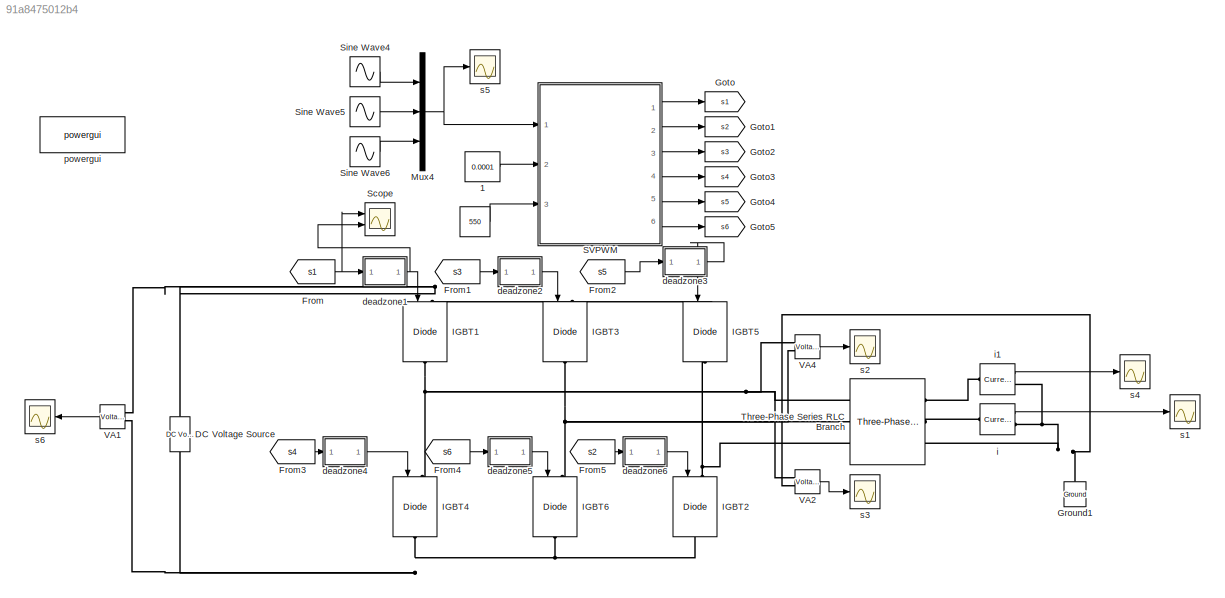
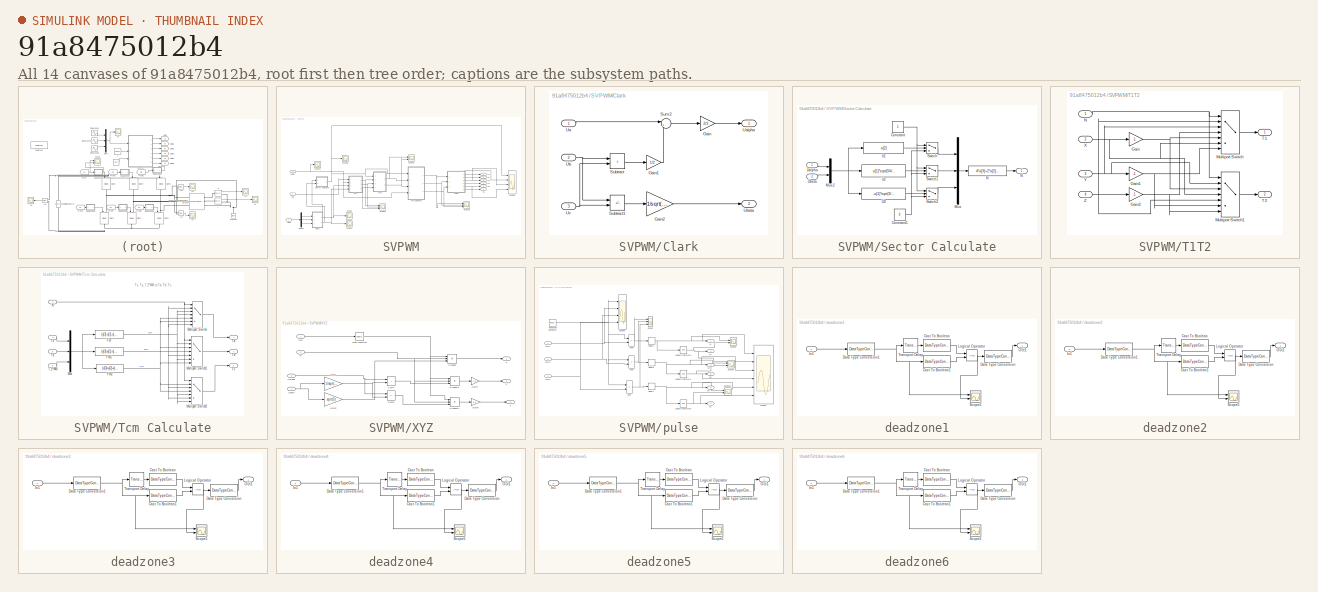
[diagram: thumbnail index - all 14 canvases of the model, root first then tree order]
MODEL slx_91a8475012b4
KIND model
CONFIG AbsTol = auto
CONFIG EnableMultiTasking = on
CONFIG FixedStep = auto
CONFIG MaxStep = auto
CONFIG MinStep = auto
CONFIG RelTol = 1e-3
CONFIG SampleTimeConstraint = Unconstrained
CONFIG Solver = ode45
CONFIG SolverName = ode45
CONFIG StartTime = 0.0
CONFIG StopTime = 0.05
BLOCK [Constant]  
  Value = 550
BLOCK [Constant]  1
  Value = 0.0001
BLOCK [Reference] DC Voltage Source  REF=powerlib/Electrical
Sources/DC Voltage Source
  NameLocation = right
  Ports = [0, 0, 0, 0, 0, 1, 1]
  SourceBlock = powerlib/Electrical\nSources/DC Voltage Source
  SourceProductBaseCode = PS
  SourceType = DC Voltage Source
BLOCK [From] From
  GotoTag = s1
BLOCK [From] From1
  GotoTag = s3
BLOCK [From] From2
  GotoTag = s5
BLOCK [From] From3
  GotoTag = s4
BLOCK [From] From4
  GotoTag = s6
BLOCK [From] From5
  GotoTag = s2
BLOCK [Goto] Goto
  GotoTag = s1
BLOCK [Goto] Goto1
  GotoTag = s2
BLOCK [Goto] Goto2
  GotoTag = s3
BLOCK [Goto] Goto3
  GotoTag = s4
BLOCK [Goto] Goto4
  GotoTag = s5
BLOCK [Goto] Goto5
  GotoTag = s6
BLOCK [Reference] Ground1  REF=powerlib/Elements/Ground
  NameLocation = right
  Ports = [0, 0, 0, 0, 0, 1]
  SourceBlock = powerlib/Elements/Ground
  SourceProductBaseCode = PS
  SourceType = Ground
BLOCK [Reference] IGBT1  REF=powerlib/Power
Electronics/IGBT//Diode
  NameLocation = left
  Ports = [1, 0, 0, 0, 0, 1, 1]
  SourceBlock = powerlib/Power\nElectronics/IGBT//Diode
  SourceProductBaseCode = PS
  SourceType = IGBT/Diode
BLOCK [Reference] IGBT2  REF=powerlib/Power
Electronics/IGBT//Diode
  NameLocation = left
  Ports = [1, 0, 0, 0, 0, 1, 1]
  SourceBlock = powerlib/Power\nElectronics/IGBT//Diode
  SourceProductBaseCode = PS
  SourceType = IGBT/Diode
BLOCK [Reference] IGBT3  REF=powerlib/Power
Electronics/IGBT//Diode
  NameLocation = left
  Ports = [1, 0, 0, 0, 0, 1, 1]
  SourceBlock = powerlib/Power\nElectronics/IGBT//Diode
  SourceProductBaseCode = PS
  SourceType = IGBT/Diode
BLOCK [Reference] IGBT4  REF=powerlib/Power
Electronics/IGBT//Diode
  NameLocation = left
  Ports = [1, 0, 0, 0, 0, 1, 1]
  SourceBlock = powerlib/Power\nElectronics/IGBT//Diode
  SourceProductBaseCode = PS
  SourceType = IGBT/Diode
BLOCK [Reference] IGBT5  REF=powerlib/Power
Electronics/IGBT//Diode
  NameLocation = left
  Ports = [1, 0, 0, 0, 0, 1, 1]
  SourceBlock = powerlib/Power\nElectronics/IGBT//Diode
  SourceProductBaseCode = PS
  SourceType = IGBT/Diode
BLOCK [Reference] IGBT6  REF=powerlib/Power
Electronics/IGBT//Diode
  NameLocation = left
  Ports = [1, 0, 0, 0, 0, 1, 1]
  SourceBlock = powerlib/Power\nElectronics/IGBT//Diode
  SourceProductBaseCode = PS
  SourceType = IGBT/Diode
BLOCK [Mux] Mux4
  DisplayOption = bar
  Inputs = 3
  Ports = [3, 1]
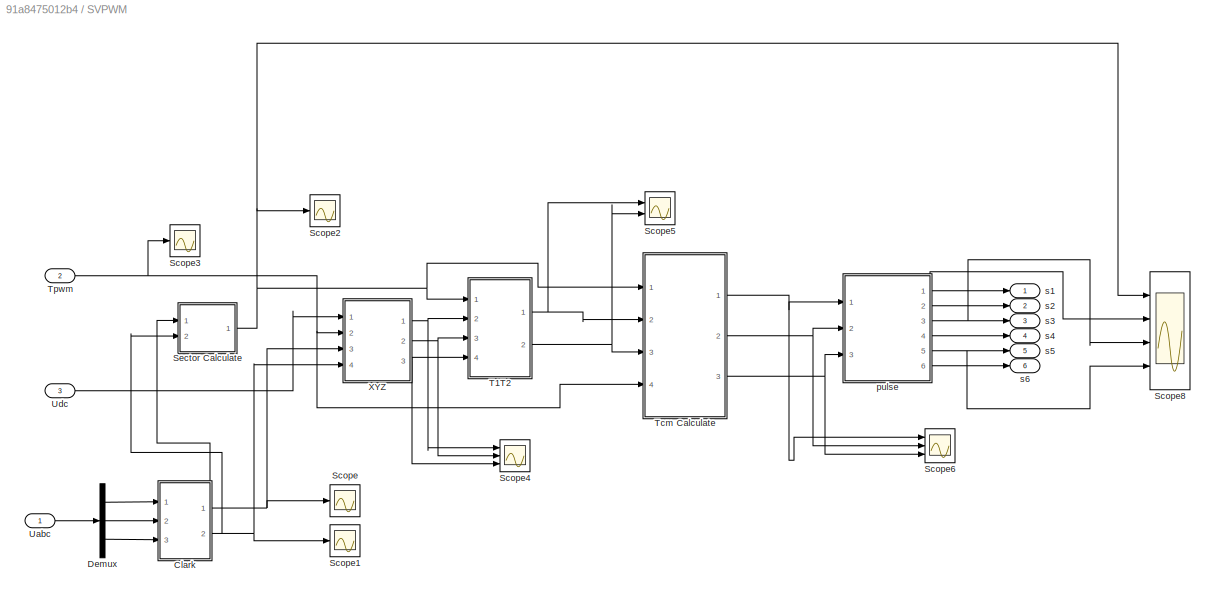
BLOCK [SubSystem] SVPWM
  Ports = [3, 6]
  RequestExecContextInheritance = off
BLOCK [SubSystem] SVPWM/Clark
  Ports = [3, 2]
  RequestExecContextInheritance = off
BLOCK [Gain] SVPWM/Clark/Gain
  Gain = 2/3
BLOCK [Gain] SVPWM/Clark/Gain1
  Gain = 1/2
BLOCK [Gain] SVPWM/Clark/Gain2
  Gain = 1/sqrt(3)
BLOCK [Sum] SVPWM/Clark/Subtract
  IconShape = rectangular
  Ports = [2, 1]
BLOCK [Sum] SVPWM/Clark/Subtract1
  IconShape = rectangular
  Inputs = +-
  Ports = [2, 1]
BLOCK [Sum] SVPWM/Clark/Sum2
  Inputs = |+-
  Ports = [2, 1]
BLOCK [Inport] SVPWM/Clark/Ua
BLOCK [Outport] SVPWM/Clark/Ualpha
BLOCK [Inport] SVPWM/Clark/Ub
  Port = 2
BLOCK [Outport] SVPWM/Clark/Ubeta
  Port = 2
BLOCK [Inport] SVPWM/Clark/Uc
  Port = 3
BLOCK [Demux] SVPWM/Demux
  Outputs = 3
  Ports = [1, 3]
BLOCK [Scope] SVPWM/Scope
  Floating = off
  NumInputPorts = 1
  Ports = [1]
  ScopeSpecificationString = Simulink.scopes.TimeScopeBlockCfg('CurrentConfiguration', extmgr.ConfigurationSet(extmgr.Configuration('Core','General UI',true),extmgr.Configuration('Core','Source UI',true),extmgr.Configuration('Sources','WiredSimulink',true,'DataLogging',true,'DataLoggingVariableName','alfa','DataLoggingSaveFormat','Array','DataLoggingDecimation','1','DataLoggingDecimateData',true),extmgr.Configuration('Visuals...<+1634ch>
BLOCK [Scope] SVPWM/Scope1
  Floating = off
  NumInputPorts = 1
  Ports = [1]
  ScopeSpecificationString = C++SS(StrPVP('Location','[10, 60, 1376, 738]'),StrPVP('Open','off'),MxPVP('AxesTitles',54,'struct(''axes1'',''%<SignalLabel>'')'),MxPVP('ScopeGraphics',57,'struct(''FigureColor'',''[0.5 0.5 0.5]'',''AxesColor'',''[0 0 0]'',''AxesTickColor'',''[1 1 1]'',''LineColors'',''[1 1 0;1 0 1;0 1 1;1 0 0;0 1 0;0 0 1]'',''LineStyles'',''-|-|-|-|-|-'',''LineWidths'',''[0.5 0.5 0.5 0.5 0.5 0.5]'',''MarkerStyles...<+239ch>
BLOCK [Scope] SVPWM/Scope2
  Floating = off
  NumInputPorts = 1
  Ports = [1]
  ScopeSpecificationString = Simulink.scopes.TimeScopeBlockCfg('CurrentConfiguration', extmgr.ConfigurationSet(extmgr.Configuration('Core','General UI',true),extmgr.Configuration('Core','Source UI',true),extmgr.Configuration('Sources','WiredSimulink',true,'DataLogging',true,'DataLoggingVariableName','N','DataLoggingSaveFormat','Array','DataLoggingDecimation','1','DataLoggingDecimateData',true),extmgr.Configuration('Visuals','...<+1616ch>
BLOCK [Scope] SVPWM/Scope3
  Floating = off
  NumInputPorts = 1
  Ports = [1]
  ScopeSpecificationString = C++SS(StrPVP('Location','[1, 49, 1367, 727]'),StrPVP('Open','off'),MxPVP('AxesTitles',54,'struct(''axes1'',''%<SignalLabel>'')'),MxPVP('ScopeGraphics',57,'struct(''FigureColor'',''[0.5 0.5 0.5]'',''AxesColor'',''[0 0 0]'',''AxesTickColor'',''[1 1 1]'',''LineColors'',''[1 1 0;1 0 1;0 1 1;1 0 0;0 1 0;0 0 1]'',''LineStyles'',''-|-|-|-|-|-'',''LineWidths'',''[0.5 0.5 0.5 0.5 0.5 0.5]'',''MarkerStyles'...<+194ch>
BLOCK [Scope] SVPWM/Scope4
  Floating = off
  NumInputPorts = 3
  Ports = [3]
  ScopeSpecificationString = Simulink.scopes.TimeScopeBlockCfg('CurrentConfiguration', extmgr.ConfigurationSet(extmgr.Configuration('Core','General UI',true),extmgr.Configuration('Core','Source UI',true),extmgr.Configuration('Sources','WiredSimulink',true,'DataLoggingVariableName','ScopeData11','DataLoggingSaveFormat','Array','DataLoggingDecimation','1','DataLoggingDecimateData',true),extmgr.Configuration('Visuals','Time Doma...<+1530ch>
BLOCK [Scope] SVPWM/Scope5
  Floating = off
  NumInputPorts = 2
  Ports = [2]
  ScopeSpecificationString = Simulink.scopes.TimeScopeBlockCfg('CurrentConfiguration', extmgr.ConfigurationSet(extmgr.Configuration('Core','General UI',true),extmgr.Configuration('Core','Source UI',true),extmgr.Configuration('Sources','WiredSimulink',true,'DataLoggingVariableName','ScopeData4'),extmgr.Configuration('Visuals','Time Domain',true,'SerializedDisplays',{struct('MinYLimReal','-0.000007','MaxYLimReal','0.000061','YL...<+1412ch>
BLOCK [Scope] SVPWM/Scope6
  Floating = off
  NumInputPorts = 3
  Ports = [3]
  ScopeSpecificationString = Simulink.scopes.TimeScopeBlockCfg('CurrentConfiguration', extmgr.ConfigurationSet(extmgr.Configuration('Core','General UI',true),extmgr.Configuration('Core','Source UI',true),extmgr.Configuration('Sources','WiredSimulink',true,'DataLogging',true,'DataLoggingVariableName','tcm1','DataLoggingSaveFormat','StructureWithTime','DataLoggingDecimation','1','DataLoggingDecimateData',true),extmgr.Configurat...<+1723ch>
BLOCK [Scope] SVPWM/Scope8
  Floating = off
  NumInputPorts = 4
  Ports = [4]
  ScopeSpecificationString = Simulink.scopes.TimeScopeBlockCfg('CurrentConfiguration', extmgr.ConfigurationSet(extmgr.Configuration('Core','General UI',true,'FigureColor',[1 1 1]),extmgr.Configuration('Core','Source UI',true),extmgr.Configuration('Sources','WiredSimulink',true,'DataLoggingVariableName','ScopeData1'),extmgr.Configuration('Visuals','Time Domain',true,'SerializedDisplays',{struct('MinYLimReal','0.375','MaxYLimRe...<+4209ch>
BLOCK [SubSystem] SVPWM/Sector Calculate
  Ports = [2, 1]
  RequestExecContextInheritance = off
BLOCK [Constant] SVPWM/Sector Calculate/Constant
BLOCK [Constant] SVPWM/Sector Calculate/Constant1
  Value = 0
BLOCK [Mux] SVPWM/Sector Calculate/Mux
  DisplayOption = bar
  Inputs = 3
  Ports = [3, 1]
BLOCK [Mux] SVPWM/Sector Calculate/Mux2
  DisplayOption = bar
  Inputs = 2
  Ports = [2, 1]
BLOCK [Fcn] SVPWM/Sector Calculate/N
  Expr = 4*u[3]+2*u[2]+u[1]
BLOCK [Outport] SVPWM/Sector Calculate/N 
  VectorParamsAs1DForOutWhenUnconnected = off
BLOCK [Switch] SVPWM/Sector Calculate/Switch
  InputSameDT = off
  SaturateOnIntegerOverflow = off
BLOCK [Switch] SVPWM/Sector Calculate/Switch1
  InputSameDT = off
  SaturateOnIntegerOverflow = off
BLOCK [Switch] SVPWM/Sector Calculate/Switch2
  InputSameDT = off
  SaturateOnIntegerOverflow = off
BLOCK [Fcn] SVPWM/Sector Calculate/U1
  Expr = u[2]
BLOCK [Fcn] SVPWM/Sector Calculate/U2
  Expr = u[1]*sqrt(3/4)-0.5*u[2]
BLOCK [Fcn] SVPWM/Sector Calculate/U3
  Expr = -u[1]*sqrt(3/4)-u[2]*0.5
BLOCK [Inport] SVPWM/Sector Calculate/Ualpha
BLOCK [Inport] SVPWM/Sector Calculate/Ubeta
  Port = 2
BLOCK [SubSystem] SVPWM/T1T2
  Ports = [4, 2]
  RequestExecContextInheritance = off
BLOCK [Gain] SVPWM/T1T2/Gain
  Gain = -1
BLOCK [Gain] SVPWM/T1T2/Gain1
  Gain = -1
BLOCK [Gain] SVPWM/T1T2/Gain2
  Gain = -1
BLOCK [MultiPortSwitch] SVPWM/T1T2/Multiport Switch
  InputSameDT = off
  Inputs = 6
  Ports = [7, 1]
  SaturateOnIntegerOverflow = off
BLOCK [MultiPortSwitch] SVPWM/T1T2/Multiport Switch1
  InputSameDT = off
  Inputs = 6
  Ports = [7, 1]
  SaturateOnIntegerOverflow = off
BLOCK [Inport] SVPWM/T1T2/N
BLOCK [Outport] SVPWM/T1T2/T1 
BLOCK [Outport] SVPWM/T1T2/T2
  Port = 2
BLOCK [Inport] SVPWM/T1T2/X
  Port = 2
BLOCK [Inport] SVPWM/T1T2/Y
  Port = 3
BLOCK [Inport] SVPWM/T1T2/Z
  Port = 4
BLOCK [SubSystem] SVPWM/Tcm Calculate
  Ports = [4, 3]
  RequestExecContextInheritance = off
BLOCK [Fcn] SVPWM/Tcm Calculate/Fcn
  Expr = (u[3]-u[1]-u[2])/4
BLOCK [Fcn] SVPWM/Tcm Calculate/Fcn1
  Expr = (u[3]+u[1]-u[2])/4
BLOCK [Fcn] SVPWM/Tcm Calculate/Fcn2
  Expr = (u[3]+u[2]+u[1])/4
BLOCK [MultiPortSwitch] SVPWM/Tcm Calculate/Multiport Switch
  InputSameDT = off
  Inputs = 6
  Ports = [7, 1]
  SaturateOnIntegerOverflow = off
BLOCK [MultiPortSwitch] SVPWM/Tcm Calculate/Multiport Switch1
  InputSameDT = off
  Inputs = 6
  Ports = [7, 1]
  SaturateOnIntegerOverflow = off
BLOCK [MultiPortSwitch] SVPWM/Tcm Calculate/Multiport Switch2
  InputSameDT = off
  Inputs = 6
  Ports = [7, 1]
  SaturateOnIntegerOverflow = off
BLOCK [Mux] SVPWM/Tcm Calculate/Mux
  DisplayOption = bar
  Inputs = 3
  Ports = [3, 1]
BLOCK [Inport] SVPWM/Tcm Calculate/N
BLOCK [Inport] SVPWM/Tcm Calculate/T_PWM
  Port = 4
BLOCK [Outport] SVPWM/Tcm Calculate/Ta
BLOCK [Outport] SVPWM/Tcm Calculate/Tb
  Port = 2
BLOCK [Outport] SVPWM/Tcm Calculate/Tc
  Port = 3
BLOCK [Inport] SVPWM/Tcm Calculate/Tx
  Port = 2
BLOCK [Inport] SVPWM/Tcm Calculate/Ty
  Port = 3
BLOCK [Inport] SVPWM/Tpwm
  Port = 2
BLOCK [Inport] SVPWM/Uabc
BLOCK [Inport] SVPWM/Udc
  Port = 3
BLOCK [SubSystem] SVPWM/XYZ
  Ports = [4, 3]
  RequestExecContextInheritance = off
BLOCK [Gain] SVPWM/XYZ/Gain1
  Gain = 1/sqrt(3)
  OutDataTypeStr = Inherit: Same as input
  ParamDataTypeStr = Inherit: Same as input
  SaturateOnIntegerOverflow = on
BLOCK [Gain] SVPWM/XYZ/Gain2
  Gain = sqrt(3)
  OutDataTypeStr = Inherit: Same as input
  ParamDataTypeStr = Inherit: Same as input
  SaturateOnIntegerOverflow = on
BLOCK [Gain] SVPWM/XYZ/Gain7
  Gain = 1.5
  OutDataTypeStr = Inherit: Same as input
  ParamDataTypeStr = Inherit: Same as input
  SaturateOnIntegerOverflow = on
BLOCK [Gain] SVPWM/XYZ/Gain8
  Gain = 1.5
  OutDataTypeStr = Inherit: Same as input
  ParamDataTypeStr = Inherit: Same as input
  SaturateOnIntegerOverflow = on
BLOCK [Math] SVPWM/XYZ/Math Function
  Operator = reciprocal
  Ports = [1, 1]
  SignedPower = on
BLOCK [Product] SVPWM/XYZ/Product
  Inputs = 3
  Ports = [3, 1]
BLOCK [Product] SVPWM/XYZ/Product1
  Inputs = 3
  Ports = [3, 1]
BLOCK [Product] SVPWM/XYZ/Product2
  Inputs = 3
  Ports = [3, 1]
BLOCK [Sum] SVPWM/XYZ/Sum4
  IconShape = rectangular
  InputSameDT = on
  OutDataTypeStr = Inherit: Same as first input
  Ports = [2, 1]
  SaturateOnIntegerOverflow = on
BLOCK [Sum] SVPWM/XYZ/Sum5
  IconShape = rectangular
  InputSameDT = on
  Inputs = -+
  OutDataTypeStr = Inherit: Same as first input
  Ports = [2, 1]
  SaturateOnIntegerOverflow = on
BLOCK [Inport] SVPWM/XYZ/Ts
  Port = 2
BLOCK [Inport] SVPWM/XYZ/Ualpha
  Port = 3
BLOCK [Inport] SVPWM/XYZ/Ubeta
  Port = 4
BLOCK [Inport] SVPWM/XYZ/Udc
BLOCK [Outport] SVPWM/XYZ/X
BLOCK [Outport] SVPWM/XYZ/Y
  Port = 2
BLOCK [Outport] SVPWM/XYZ/Z
  Port = 3
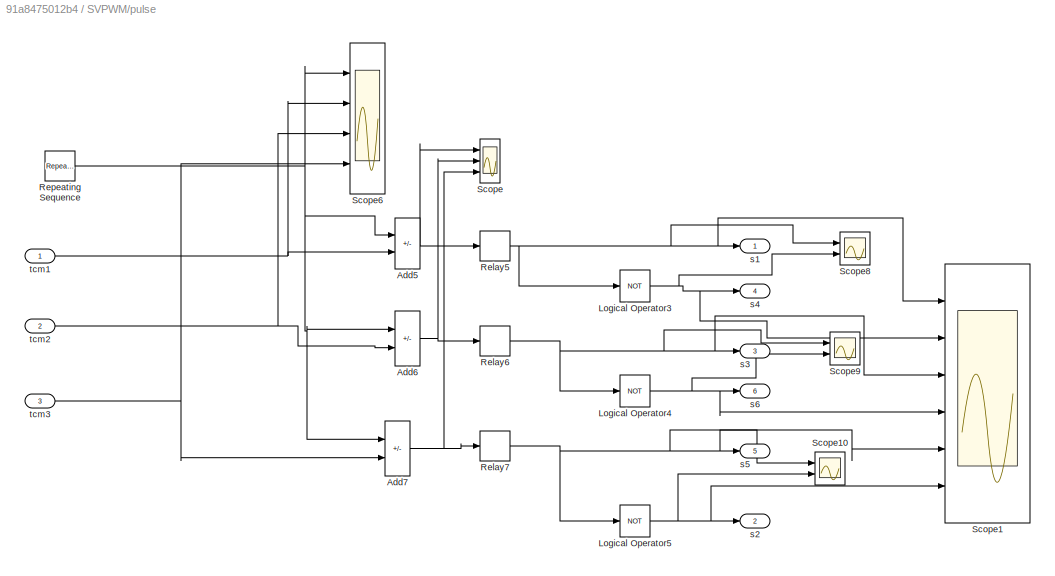
BLOCK [SubSystem] SVPWM/pulse
  Ports = [3, 6]
  RequestExecContextInheritance = off
BLOCK [Sum] SVPWM/pulse/Add5
  IconShape = rectangular
  Inputs = +-
  Ports = [2, 1]
BLOCK [Sum] SVPWM/pulse/Add6
  IconShape = rectangular
  Inputs = +-
  Ports = [2, 1]
BLOCK [Sum] SVPWM/pulse/Add7
  IconShape = rectangular
  Inputs = +-
  Ports = [2, 1]
BLOCK [Logic] SVPWM/pulse/Logical Operator3
  AllPortsSameDT = off
  Operator = NOT
  OutDataTypeStr = boolean
  Ports = [1, 1]
BLOCK [Logic] SVPWM/pulse/Logical Operator4
  AllPortsSameDT = off
  Operator = NOT
  OutDataTypeStr = boolean
  Ports = [1, 1]
BLOCK [Logic] SVPWM/pulse/Logical Operator5
  AllPortsSameDT = off
  Operator = NOT
  OutDataTypeStr = boolean
  Ports = [1, 1]
BLOCK [Relay] SVPWM/pulse/Relay5
BLOCK [Relay] SVPWM/pulse/Relay6
BLOCK [Relay] SVPWM/pulse/Relay7
BLOCK [Reference] SVPWM/pulse/Repeating Sequence  REF=simulink/Sources/Repeating
Sequence
  Ports = [0, 1]
  SourceBlock = simulink/Sources/Repeating\nSequence
  SourceProductBaseCode = SL
  SourceType = Repeating table
BLOCK [Scope] SVPWM/pulse/Scope
  Floating = off
  NumInputPorts = 3
  Ports = [3]
  ScopeSpecificationString = Simulink.scopes.TimeScopeBlockCfg('CurrentConfiguration', extmgr.ConfigurationSet(extmgr.Configuration('Core','General UI',true),extmgr.Configuration('Core','Source UI',true),extmgr.Configuration('Sources','WiredSimulink',true,'DataLoggingVariableName','ScopeData3'),extmgr.Configuration('Visuals','Time Domain',true,'SerializedDisplays',{struct('MinYLimReal','-0.00005','MaxYLimReal','0.00005','YLab...<+1476ch>
BLOCK [Scope] SVPWM/pulse/Scope1
  Floating = off
  NumInputPorts = 6
  Ports = [6]
  ScopeSpecificationString = Simulink.scopes.TimeScopeBlockCfg('CurrentConfiguration', extmgr.ConfigurationSet(extmgr.Configuration('Core','General UI',true),extmgr.Configuration('Core','Source UI',true),extmgr.Configuration('Sources','WiredSimulink',true,'DataLoggingVariableName','ScopeData2','DataLoggingSaveFormat','StructureWithTime','DataLoggingDecimation','1','DataLoggingDecimateData',true),extmgr.Configuration('Visuals'...<+5133ch>
BLOCK [Scope] SVPWM/pulse/Scope10
  Floating = off
  NumInputPorts = 2
  Ports = [2]
  ScopeSpecificationString = C++SS(StrPVP('Location','[10, 60, 1376, 739]'),StrPVP('Open','off'),StrPVP('ZoomMode','xonly'),MxPVP('AxesTitles',54,'struct(''axes1'',''%<SignalLabel>'',''axes2'',''%<SignalLabel>'')'),MxPVP('ScopeGraphics',57,'struct(''FigureColor'',''[0.5 0.5 0.5]'',''AxesColor'',''[0 0 0]'',''AxesTickColor'',''[1 1 1]'',''LineColors'',''[1 1 0;1 0 1;0 1 1;1 0 0;0 1 0;0 0 1]'',''LineStyles'',''-|-|-|-|-|-'',''L...<+321ch>
BLOCK [Scope] SVPWM/pulse/Scope6
  Floating = off
  NumInputPorts = 4
  Ports = [4]
  ScopeSpecificationString = Simulink.scopes.TimeScopeBlockCfg('CurrentConfiguration', extmgr.ConfigurationSet(extmgr.Configuration('Core','General UI',true),extmgr.Configuration('Core','Source UI',true),extmgr.Configuration('Sources','WiredSimulink',true,'DataLoggingVariableName','ScopeData1','DataLoggingSaveFormat','StructureWithTime','DataLoggingDecimation','1','DataLoggingDecimateData',true),extmgr.Configuration('Visuals'...<+1742ch>
BLOCK [Scope] SVPWM/pulse/Scope8
  Floating = off
  NumInputPorts = 2
  Ports = [2]
  ScopeSpecificationString = C++SS(StrPVP('Location','[10, 60, 1376, 739]'),StrPVP('Open','off'),StrPVP('ZoomMode','xonly'),MxPVP('AxesTitles',54,'struct(''axes1'',''%<SignalLabel>'',''axes2'',''%<SignalLabel>'')'),MxPVP('ScopeGraphics',57,'struct(''FigureColor'',''[0.5 0.5 0.5]'',''AxesColor'',''[0 0 0]'',''AxesTickColor'',''[1 1 1]'',''LineColors'',''[1 1 0;1 0 1;0 1 1;1 0 0;0 1 0;0 0 1]'',''LineStyles'',''-|-|-|-|-|-'',''L...<+343ch>
BLOCK [Scope] SVPWM/pulse/Scope9
  Floating = off
  NumInputPorts = 2
  Ports = [2]
  ScopeSpecificationString = C++SS(StrPVP('Location','[10, 60, 1376, 739]'),StrPVP('Open','off'),StrPVP('ZoomMode','xonly'),MxPVP('AxesTitles',54,'struct(''axes1'',''%<SignalLabel>'',''axes2'',''%<SignalLabel>'')'),MxPVP('ScopeGraphics',57,'struct(''FigureColor'',''[0.5 0.5 0.5]'',''AxesColor'',''[0 0 0]'',''AxesTickColor'',''[1 1 1]'',''LineColors'',''[1 1 0;1 0 1;0 1 1;1 0 0;0 1 0;0 0 1]'',''LineStyles'',''-|-|-|-|-|-'',''L...<+343ch>
BLOCK [Outport] SVPWM/pulse/s1
BLOCK [Outport] SVPWM/pulse/s2
  Port = 2
BLOCK [Outport] SVPWM/pulse/s3
  Port = 3
BLOCK [Outport] SVPWM/pulse/s4
  Port = 4
BLOCK [Outport] SVPWM/pulse/s5
  Port = 5
BLOCK [Outport] SVPWM/pulse/s6
  Port = 6
BLOCK [Inport] SVPWM/pulse/tcm1
BLOCK [Inport] SVPWM/pulse/tcm2
  Port = 2
BLOCK [Inport] SVPWM/pulse/tcm3
  Port = 3
BLOCK [Outport] SVPWM/s1
BLOCK [Outport] SVPWM/s2
  Port = 2
BLOCK [Outport] SVPWM/s3
  Port = 3
BLOCK [Outport] SVPWM/s4
  Port = 4
BLOCK [Outport] SVPWM/s5
  Port = 5
BLOCK [Outport] SVPWM/s6
  Port = 6
BLOCK [Scope] Scope
  Floating = off
  NumInputPorts = 2
  Ports = [2]
  ScopeSpecificationString = Simulink.scopes.TimeScopeBlockCfg('CurrentConfiguration', extmgr.ConfigurationSet(extmgr.Configuration('Core','General UI',true),extmgr.Configuration('Core','Source UI',true),extmgr.Configuration('Sources','WiredSimulink',true,'DataLoggingVariableName','ScopeData1'),extmgr.Configuration('Visuals','Time Domain',true,'SerializedDisplays',{struct('MinYLimReal','-0.125','MaxYLimReal','1.125','YLabelRe...<+2076ch>
BLOCK [Sin] Sine Wave4
  Amplitude = 200
  Frequency = 100*pi
  Ports = [0, 1]
  SampleTime = 0
BLOCK [Sin] Sine Wave5
  Amplitude = 200
  Frequency = 100*pi
  Phase = -2*pi/3
  Ports = [0, 1]
  SampleTime = 0
BLOCK [Sin] Sine Wave6
  Amplitude = 200
  Frequency = 100*pi
  Phase = -4*pi/3
  Ports = [0, 1]
  SampleTime = 0
BLOCK [Reference] Three-Phase Series RLC Branch  REF=powerlib/Elements/Three-Phase
Series RLC Branch
  AttributesFormatString = \n
  Ports = [0, 0, 0, 0, 0, 3, 3]
  SourceBlock = powerlib/Elements/Three-Phase\nSeries RLC Branch
  SourceProductBaseCode = PS
  SourceType = Three-Phase Series RLC Branch
BLOCK [Reference] VA1  REF=powerlib/Measurements/Voltage Measurement
  Ports = [0, 1, 0, 0, 0, 2]
  SourceBlock = powerlib/Measurements/Voltage Measurement
  SourceProductBaseCode = PS
  SourceType = Voltage Measurement
BLOCK [Reference] VA2  REF=powerlib/Measurements/Voltage Measurement
  Ports = [0, 1, 0, 0, 0, 2]
  SourceBlock = powerlib/Measurements/Voltage Measurement
  SourceProductBaseCode = PS
  SourceType = Voltage Measurement
BLOCK [Reference] VA4  REF=powerlib/Measurements/Voltage Measurement
  Ports = [0, 1, 0, 0, 0, 2]
  SourceBlock = powerlib/Measurements/Voltage Measurement
  SourceProductBaseCode = PS
  SourceType = Voltage Measurement
BLOCK [SubSystem] deadzone1
  Ports = [1, 1]
  RequestExecContextInheritance = off
BLOCK [DataTypeConversion] deadzone1/Cast To Boolean
  OutDataTypeStr = boolean
  RndMeth = Floor
  SaturateOnIntegerOverflow = off
BLOCK [DataTypeConversion] deadzone1/Cast To Boolean1
  OutDataTypeStr = boolean
  RndMeth = Floor
  SaturateOnIntegerOverflow = off
BLOCK [DataTypeConversion] deadzone1/Data Type Conversion
  OutDataTypeStr = double
  RndMeth = Floor
  SaturateOnIntegerOverflow = off
BLOCK [DataTypeConversion] deadzone1/Data Type Conversion1
  OutDataTypeStr = double
  RndMeth = Floor
  SaturateOnIntegerOverflow = off
BLOCK [Inport] deadzone1/In1
BLOCK [Logic] deadzone1/Logical Operator
  AllPortsSameDT = off
  OutDataTypeStr = boolean
  Ports = [2, 1]
BLOCK [Outport] deadzone1/Out1
  VectorParamsAs1DForOutWhenUnconnected = off
BLOCK [Scope] deadzone1/Scope5
  Floating = off
  NumInputPorts = 2
  Ports = [2]
  ScopeSpecificationString = Simulink.scopes.TimeScopeBlockCfg('CurrentConfiguration', extmgr.ConfigurationSet(extmgr.Configuration('Core','General UI',true),extmgr.Configuration('Core','Source UI',true),extmgr.Configuration('Sources','WiredSimulink',true,'DataLoggingVariableName','ScopeData2'),extmgr.Configuration('Visuals','Time Domain',true,'SerializedDisplays',{struct('MinYLimReal','-0.125','MaxYLimReal','1.125','YLabelRe...<+2090ch>  <repeated x6 — deduplicated; at blocks: Scope5>
BLOCK [TransportDelay] deadzone1/Transport Delay
  DelayTime = T_dead
  Ports = [1, 1]
BLOCK [SubSystem] deadzone2
  Ports = [1, 1]
  RequestExecContextInheritance = off
BLOCK [DataTypeConversion] deadzone2/Cast To Boolean
  OutDataTypeStr = boolean
  RndMeth = Floor
  SaturateOnIntegerOverflow = off
BLOCK [DataTypeConversion] deadzone2/Cast To Boolean1
  OutDataTypeStr = boolean
  RndMeth = Floor
  SaturateOnIntegerOverflow = off
BLOCK [DataTypeConversion] deadzone2/Data Type Conversion
  OutDataTypeStr = double
  RndMeth = Floor
  SaturateOnIntegerOverflow = off
BLOCK [DataTypeConversion] deadzone2/Data Type Conversion1
  OutDataTypeStr = double
  RndMeth = Floor
  SaturateOnIntegerOverflow = off
BLOCK [Inport] deadzone2/In1
BLOCK [Logic] deadzone2/Logical Operator
  AllPortsSameDT = off
  OutDataTypeStr = boolean
  Ports = [2, 1]
BLOCK [Outport] deadzone2/Out1
  VectorParamsAs1DForOutWhenUnconnected = off
BLOCK [Scope] deadzone2/Scope5
  Floating = off
  NumInputPorts = 2
  Ports = [2]
BLOCK [TransportDelay] deadzone2/Transport Delay
  DelayTime = T_dead
  Ports = [1, 1]
BLOCK [SubSystem] deadzone3
  Ports = [1, 1]
  RequestExecContextInheritance = off
BLOCK [DataTypeConversion] deadzone3/Cast To Boolean
  OutDataTypeStr = boolean
  RndMeth = Floor
  SaturateOnIntegerOverflow = off
BLOCK [DataTypeConversion] deadzone3/Cast To Boolean1
  OutDataTypeStr = boolean
  RndMeth = Floor
  SaturateOnIntegerOverflow = off
BLOCK [DataTypeConversion] deadzone3/Data Type Conversion
  OutDataTypeStr = double
  RndMeth = Floor
  SaturateOnIntegerOverflow = off
BLOCK [DataTypeConversion] deadzone3/Data Type Conversion1
  OutDataTypeStr = double
  RndMeth = Floor
  SaturateOnIntegerOverflow = off
BLOCK [Inport] deadzone3/In1
BLOCK [Logic] deadzone3/Logical Operator
  AllPortsSameDT = off
  OutDataTypeStr = boolean
  Ports = [2, 1]
BLOCK [Outport] deadzone3/Out1
  VectorParamsAs1DForOutWhenUnconnected = off
BLOCK [Scope] deadzone3/Scope5
  Floating = off
  NumInputPorts = 2
  Ports = [2]
BLOCK [TransportDelay] deadzone3/Transport Delay
  DelayTime = T_dead
  Ports = [1, 1]
BLOCK [SubSystem] deadzone4
  Ports = [1, 1]
  RequestExecContextInheritance = off
BLOCK [DataTypeConversion] deadzone4/Cast To Boolean
  OutDataTypeStr = boolean
  RndMeth = Floor
  SaturateOnIntegerOverflow = off
BLOCK [DataTypeConversion] deadzone4/Cast To Boolean1
  OutDataTypeStr = boolean
  RndMeth = Floor
  SaturateOnIntegerOverflow = off
BLOCK [DataTypeConversion] deadzone4/Data Type Conversion
  OutDataTypeStr = double
  RndMeth = Floor
  SaturateOnIntegerOverflow = off
BLOCK [DataTypeConversion] deadzone4/Data Type Conversion1
  OutDataTypeStr = double
  RndMeth = Floor
  SaturateOnIntegerOverflow = off
BLOCK [Inport] deadzone4/In1
BLOCK [Logic] deadzone4/Logical Operator
  AllPortsSameDT = off
  OutDataTypeStr = boolean
  Ports = [2, 1]
BLOCK [Outport] deadzone4/Out1
  VectorParamsAs1DForOutWhenUnconnected = off
BLOCK [Scope] deadzone4/Scope5
  Floating = off
  NumInputPorts = 2
  Ports = [2]
BLOCK [TransportDelay] deadzone4/Transport Delay
  DelayTime = T_dead
  Ports = [1, 1]
BLOCK [SubSystem] deadzone5
  Ports = [1, 1]
  RequestExecContextInheritance = off
BLOCK [DataTypeConversion] deadzone5/Cast To Boolean
  OutDataTypeStr = boolean
  RndMeth = Floor
  SaturateOnIntegerOverflow = off
BLOCK [DataTypeConversion] deadzone5/Cast To Boolean1
  OutDataTypeStr = boolean
  RndMeth = Floor
  SaturateOnIntegerOverflow = off
BLOCK [DataTypeConversion] deadzone5/Data Type Conversion
  OutDataTypeStr = double
  RndMeth = Floor
  SaturateOnIntegerOverflow = off
BLOCK [DataTypeConversion] deadzone5/Data Type Conversion1
  OutDataTypeStr = double
  RndMeth = Floor
  SaturateOnIntegerOverflow = off
BLOCK [Inport] deadzone5/In1
BLOCK [Logic] deadzone5/Logical Operator
  AllPortsSameDT = off
  OutDataTypeStr = boolean
  Ports = [2, 1]
BLOCK [Outport] deadzone5/Out1
  VectorParamsAs1DForOutWhenUnconnected = off
BLOCK [Scope] deadzone5/Scope5
  Floating = off
  NumInputPorts = 2
  Ports = [2]
BLOCK [TransportDelay] deadzone5/Transport Delay
  DelayTime = T_dead
  Ports = [1, 1]
BLOCK [SubSystem] deadzone6
  Ports = [1, 1]
  RequestExecContextInheritance = off
BLOCK [DataTypeConversion] deadzone6/Cast To Boolean
  OutDataTypeStr = boolean
  RndMeth = Floor
  SaturateOnIntegerOverflow = off
BLOCK [DataTypeConversion] deadzone6/Cast To Boolean1
  OutDataTypeStr = boolean
  RndMeth = Floor
  SaturateOnIntegerOverflow = off
BLOCK [DataTypeConversion] deadzone6/Data Type Conversion
  OutDataTypeStr = double
  RndMeth = Floor
  SaturateOnIntegerOverflow = off
BLOCK [DataTypeConversion] deadzone6/Data Type Conversion1
  OutDataTypeStr = double
  RndMeth = Floor
  SaturateOnIntegerOverflow = off
BLOCK [Inport] deadzone6/In1
BLOCK [Logic] deadzone6/Logical Operator
  AllPortsSameDT = off
  OutDataTypeStr = boolean
  Ports = [2, 1]
BLOCK [Outport] deadzone6/Out1
  VectorParamsAs1DForOutWhenUnconnected = off
BLOCK [Scope] deadzone6/Scope5
  Floating = off
  NumInputPorts = 2
  Ports = [2]
BLOCK [TransportDelay] deadzone6/Transport Delay
  DelayTime = T_dead
  Ports = [1, 1]
BLOCK [Reference] i  REF=powerlib/Measurements/Current Measurement
  NameLocation = top
  Ports = [0, 1, 0, 0, 0, 1, 1]
  SourceBlock = powerlib/Measurements/Current Measurement
  SourceProductBaseCode = PS
  SourceType = Current Measurement
BLOCK [Reference] i1  REF=powerlib/Measurements/Current Measurement
  NameLocation = top
  Ports = [0, 1, 0, 0, 0, 1, 1]
  SourceBlock = powerlib/Measurements/Current Measurement
  SourceProductBaseCode = PS
  SourceType = Current Measurement
BLOCK [Reference] powergui  REF=powerlib/powergui
  Ports = []
  Priority = 1
  SourceBlock = powerlib/powergui
  SourceProductBaseCode = PS
  SourceType = PSB option menu block
BLOCK [Scope] s1
  Floating = off
  NumInputPorts = 1
  Ports = [1]
  ScopeSpecificationString = Simulink.scopes.TimeScopeBlockCfg('CurrentConfiguration', extmgr.ConfigurationSet(extmgr.Configuration('Core','General UI',true),extmgr.Configuration('Core','Source UI',true),extmgr.Configuration('Sources','WiredSimulink',true,'DataLogging',true,'DataLoggingVariableName','ei','DataLoggingSaveFormat','StructureWithTime','SampleTime','0.00001','DataLoggingDecimation','1','DataLoggingDecimateData',tr...<+1726ch>
BLOCK [Scope] s2
  Floating = off
  NumInputPorts = 1
  Ports = [1]
  ScopeSpecificationString = Simulink.scopes.TimeScopeBlockCfg('CurrentConfiguration', extmgr.ConfigurationSet(extmgr.Configuration('Core','General UI',true),extmgr.Configuration('Core','Source UI',true),extmgr.Configuration('Sources','WiredSimulink',true,'DataLogging',true,'DataLoggingVariableName','uab','SampleTime','0.00001','DataLoggingSaveFormat','Array','DataLoggingDecimation','1','DataLoggingDecimateData',true),extmgr....<+1654ch>
BLOCK [Scope] s3
  Floating = off
  NumInputPorts = 1
  Ports = [1]
  ScopeSpecificationString = C++SS(StrPVP('Location','[10, 60, 1376, 733]'),StrPVP('Open','off'),StrPVP('ZoomMode','xonly'),MxPVP('AxesTitles',54,'struct(''axes1'',''%<SignalLabel>'')'),MxPVP('ScopeGraphics',57,'struct(''FigureColor'',''[0.5 0.5 0.5]'',''AxesColor'',''[0 0 0]'',''AxesTickColor'',''[1 1 1]'',''LineColors'',''[1 1 0;1 0 1;0 1 1;1 0 0;0 1 0;0 0 1]'',''LineStyles'',''-|-|-|-|-|-'',''LineWidths'',''[0.5 0.5 0.5 0....<+329ch>
BLOCK [Scope] s4
  Floating = off
  NumInputPorts = 1
  Ports = [1]
  ScopeSpecificationString = Simulink.scopes.TimeScopeBlockCfg('CurrentConfiguration', extmgr.ConfigurationSet(extmgr.Configuration('Core','General UI',true),extmgr.Configuration('Core','Source UI',true),extmgr.Configuration('Sources','WiredSimulink',true,'DataLogging',true,'DataLoggingVariableName','ia','SampleTime','0.00001','DataLoggingSaveFormat','Array','DataLoggingDecimation','1','DataLoggingDecimateData',true),extmgr.C...<+1696ch>
BLOCK [Scope] s5
  Floating = off
  NumInputPorts = 1
  Ports = [1]
  ScopeSpecificationString = Simulink.scopes.TimeScopeBlockCfg('CurrentConfiguration', extmgr.ConfigurationSet(extmgr.Configuration('Core','General UI',true),extmgr.Configuration('Core','Source UI',true),extmgr.Configuration('Sources','WiredSimulink',true,'DataLogging',true,'DataLoggingVariableName','ei11','DataLoggingSaveFormat','StructureWithTime','SampleTime','0.00001','DataLoggingDecimation','1','DataLoggingDecimateData',...<+1655ch>
BLOCK [Scope] s6
  Floating = off
  NameLocation = top
  NumInputPorts = 1
  Ports = [1]
  ScopeSpecificationString = C++SS(StrPVP('Location','[10, 60, 1376, 733]'),StrPVP('Open','off'),StrPVP('ZoomMode','xonly'),MxPVP('AxesTitles',54,'struct(''axes1'',''%<SignalLabel>'')'),MxPVP('ScopeGraphics',57,'struct(''FigureColor'',''[0.5 0.5 0.5]'',''AxesColor'',''[0 0 0]'',''AxesTickColor'',''[1 1 1]'',''LineColors'',''[1 1 0;1 0 1;0 1 1;1 0 0;0 1 0;0 0 1]'',''LineStyles'',''-|-|-|-|-|-'',''LineWidths'',''[0.5 0.5 0.5 0....<+346ch>
ANNOTATION SVPWM/Tcm Calculate: Tx, Ty, T_PWM to Ta, Tb, Tc.
LINE  1:1 -> SVPWM:2
LINE  :1 -> SVPWM:3
LINE From1:1 -> deadzone2:1
LINE From2:1 -> deadzone3:1
LINE From3:1 -> deadzone4:1
LINE From4:1 -> deadzone5:1
LINE From5:1 -> deadzone6:1
NET From:1 -> Scope:1, deadzone1:1
NET Mux4:1 -> SVPWM:1, s5:1
LINE SVPWM/Clark/Gain1:1 -> SVPWM/Clark/Sum2:2
LINE SVPWM/Clark/Gain2:1 -> SVPWM/Clark/Ubeta:1
LINE SVPWM/Clark/Gain:1 -> SVPWM/Clark/Ualpha:1
LINE SVPWM/Clark/Subtract1:1 -> SVPWM/Clark/Gain2:1
LINE SVPWM/Clark/Subtract:1 -> SVPWM/Clark/Gain1:1
LINE SVPWM/Clark/Sum2:1 -> SVPWM/Clark/Gain:1
LINE SVPWM/Clark/Ua:1 -> SVPWM/Clark/Sum2:1
NET SVPWM/Clark/Ub:1 -> SVPWM/Clark/Subtract1:1, SVPWM/Clark/Subtract:1
NET SVPWM/Clark/Uc:1 -> SVPWM/Clark/Subtract1:2, SVPWM/Clark/Subtract:2
NET SVPWM/Clark:1 -> SVPWM/Scope:1, SVPWM/Sector Calculate:1, SVPWM/XYZ:3
NET SVPWM/Clark:2 -> SVPWM/Scope1:1, SVPWM/Sector Calculate:2, SVPWM/XYZ:4
LINE SVPWM/Demux:1 -> SVPWM/Clark:1
LINE SVPWM/Demux:2 -> SVPWM/Clark:2
LINE SVPWM/Demux:3 -> SVPWM/Clark:3
NET SVPWM/Sector Calculate/Constant1:1 -> SVPWM/Sector Calculate/Switch1:3, SVPWM/Sector Calculate/Switch2:3, SVPWM/Sector Calculate/Switch:3
NET SVPWM/Sector Calculate/Constant:1 -> SVPWM/Sector Calculate/Switch1:1, SVPWM/Sector Calculate/Switch2:1, SVPWM/Sector Calculate/Switch:1
NET SVPWM/Sector Calculate/Mux2:1 -> SVPWM/Sector Calculate/U1:1, SVPWM/Sector Calculate/U2:1, SVPWM/Sector Calculate/U3:1
LINE SVPWM/Sector Calculate/Mux:1 -> SVPWM/Sector Calculate/N:1
LINE SVPWM/Sector Calculate/N:1 -> SVPWM/Sector Calculate/N :1
LINE SVPWM/Sector Calculate/Switch1:1 -> SVPWM/Sector Calculate/Mux:2
LINE SVPWM/Sector Calculate/Switch2:1 -> SVPWM/Sector Calculate/Mux:3
LINE SVPWM/Sector Calculate/Switch:1 -> SVPWM/Sector Calculate/Mux:1
LINE SVPWM/Sector Calculate/U1:1 -> SVPWM/Sector Calculate/Switch:2
LINE SVPWM/Sector Calculate/U2:1 -> SVPWM/Sector Calculate/Switch1:2
LINE SVPWM/Sector Calculate/U3:1 -> SVPWM/Sector Calculate/Switch2:2
LINE SVPWM/Sector Calculate/Ualpha:1 -> SVPWM/Sector Calculate/Mux2:1
LINE SVPWM/Sector Calculate/Ubeta:1 -> SVPWM/Sector Calculate/Mux2:2
NET SVPWM/Sector Calculate:1 -> SVPWM/Scope2:1, SVPWM/Scope8:1, SVPWM/T1T2:1, SVPWM/Tcm Calculate:1
NET SVPWM/T1T2/Gain1:1 -> SVPWM/T1T2/Multiport Switch1:6, SVPWM/T1T2/Multiport Switch:7
NET SVPWM/T1T2/Gain2:1 -> SVPWM/T1T2/Multiport Switch1:7, SVPWM/T1T2/Multiport Switch:4
NET SVPWM/T1T2/Gain:1 -> SVPWM/T1T2/Multiport Switch1:3, SVPWM/T1T2/Multiport Switch:5
LINE SVPWM/T1T2/Multiport Switch1:1 -> SVPWM/T1T2/T2:1
LINE SVPWM/T1T2/Multiport Switch:1 -> SVPWM/T1T2/T1 :1
NET SVPWM/T1T2/N:1 -> SVPWM/T1T2/Multiport Switch1:1, SVPWM/T1T2/Multiport Switch:1
NET SVPWM/T1T2/X:1 -> SVPWM/T1T2/Gain:1, SVPWM/T1T2/Multiport Switch1:4, SVPWM/T1T2/Multiport Switch:6
NET SVPWM/T1T2/Y:1 -> SVPWM/T1T2/Gain1:1, SVPWM/T1T2/Multiport Switch1:2, SVPWM/T1T2/Multiport Switch:3
NET SVPWM/T1T2/Z:1 -> SVPWM/T1T2/Gain2:1, SVPWM/T1T2/Multiport Switch1:5, SVPWM/T1T2/Multiport Switch:2
NET SVPWM/T1T2:1 -> SVPWM/Scope5:1, SVPWM/Tcm Calculate:2
NET SVPWM/T1T2:2 -> SVPWM/Scope5:2, SVPWM/Tcm Calculate:3
NET SVPWM/Tcm Calculate/Fcn1:1 -> SVPWM/Tcm Calculate/Multiport Switch1:4, SVPWM/Tcm Calculate/Multiport Switch1:5, SVPWM/Tcm Calculate/Multiport Switch2:3, SVPWM/Tcm Calculate/Multiport Switch2:6, SVPWM/Tcm Calculate/Multiport Switch:2, SVPWM/Tcm Calculate/Multiport Switch:7
NET SVPWM/Tcm Calculate/Fcn2:1 -> SVPWM/Tcm Calculate/Multiport Switch1:3, SVPWM/Tcm Calculate/Multiport Switch1:7, SVPWM/Tcm Calculate/Multiport Switch2:2, SVPWM/Tcm Calculate/Multiport Switch2:4, SVPWM/Tcm Calculate/Multiport Switch:5, SVPWM/Tcm Calculate/Multiport Switch:6
NET SVPWM/Tcm Calculate/Fcn:1 -> SVPWM/Tcm Calculate/Multiport Switch1:2, SVPWM/Tcm Calculate/Multiport Switch1:6, SVPWM/Tcm Calculate/Multiport Switch2:5, SVPWM/Tcm Calculate/Multiport Switch2:7, SVPWM/Tcm Calculate/Multiport Switch:3, SVPWM/Tcm Calculate/Multiport Switch:4
LINE SVPWM/Tcm Calculate/Multiport Switch1:1 -> SVPWM/Tcm Calculate/Tb:1
LINE SVPWM/Tcm Calculate/Multiport Switch2:1 -> SVPWM/Tcm Calculate/Tc:1
LINE SVPWM/Tcm Calculate/Multiport Switch:1 -> SVPWM/Tcm Calculate/Ta:1
NET SVPWM/Tcm Calculate/Mux:1 -> SVPWM/Tcm Calculate/Fcn1:1, SVPWM/Tcm Calculate/Fcn2:1, SVPWM/Tcm Calculate/Fcn:1
NET SVPWM/Tcm Calculate/N:1 -> SVPWM/Tcm Calculate/Multiport Switch1:1, SVPWM/Tcm Calculate/Multiport Switch2:1, SVPWM/Tcm Calculate/Multiport Switch:1
LINE SVPWM/Tcm Calculate/T_PWM:1 -> SVPWM/Tcm Calculate/Mux:3
LINE SVPWM/Tcm Calculate/Tx:1 -> SVPWM/Tcm Calculate/Mux:1
LINE SVPWM/Tcm Calculate/Ty:1 -> SVPWM/Tcm Calculate/Mux:2
NET SVPWM/Tcm Calculate:1 -> SVPWM/Scope6:1, SVPWM/pulse:1
NET SVPWM/Tcm Calculate:2 -> SVPWM/Scope6:2, SVPWM/pulse:2
NET SVPWM/Tcm Calculate:3 -> SVPWM/Scope6:3, SVPWM/pulse:3
NET SVPWM/Tpwm:1 -> SVPWM/Scope3:1, SVPWM/Tcm Calculate:4, SVPWM/XYZ:2
LINE SVPWM/Uabc:1 -> SVPWM/Demux:1
LINE SVPWM/Udc:1 -> SVPWM/XYZ:1
NET SVPWM/XYZ/Gain1:1 -> SVPWM/XYZ/Sum4:2, SVPWM/XYZ/Sum5:2
LINE SVPWM/XYZ/Gain2:1 -> SVPWM/XYZ/Product:3
LINE SVPWM/XYZ/Gain7:1 -> SVPWM/XYZ/Y:1
LINE SVPWM/XYZ/Gain8:1 -> SVPWM/XYZ/Z:1
NET SVPWM/XYZ/Math Function:1 -> SVPWM/XYZ/Product1:1, SVPWM/XYZ/Product2:1, SVPWM/XYZ/Product:1
LINE SVPWM/XYZ/Product1:1 -> SVPWM/XYZ/Gain7:1
LINE SVPWM/XYZ/Product2:1 -> SVPWM/XYZ/Gain8:1
LINE SVPWM/XYZ/Product:1 -> SVPWM/XYZ/X:1
LINE SVPWM/XYZ/Sum4:1 -> SVPWM/XYZ/Product1:3
LINE SVPWM/XYZ/Sum5:1 -> SVPWM/XYZ/Product2:3
NET SVPWM/XYZ/Ts:1 -> SVPWM/XYZ/Product1:2, SVPWM/XYZ/Product2:2, SVPWM/XYZ/Product:2
NET SVPWM/XYZ/Ualpha:1 -> SVPWM/XYZ/Sum4:1, SVPWM/XYZ/Sum5:1
NET SVPWM/XYZ/Ubeta:1 -> SVPWM/XYZ/Gain1:1, SVPWM/XYZ/Gain2:1
LINE SVPWM/XYZ/Udc:1 -> SVPWM/XYZ/Math Function:1
NET SVPWM/XYZ:1 -> SVPWM/Scope4:1, SVPWM/T1T2:2
NET SVPWM/XYZ:2 -> SVPWM/Scope4:2, SVPWM/T1T2:3
NET SVPWM/XYZ:3 -> SVPWM/Scope4:3, SVPWM/T1T2:4
NET SVPWM/pulse/Add5:1 -> SVPWM/pulse/Relay5:1, SVPWM/pulse/Scope:1
NET SVPWM/pulse/Add6:1 -> SVPWM/pulse/Relay6:1, SVPWM/pulse/Scope:2
NET SVPWM/pulse/Add7:1 -> SVPWM/pulse/Relay7:1, SVPWM/pulse/Scope:3
NET SVPWM/pulse/Logical Operator3:1 -> SVPWM/pulse/Scope1:2, SVPWM/pulse/Scope8:2, SVPWM/pulse/s4:1
NET SVPWM/pulse/Logical Operator4:1 -> SVPWM/pulse/Scope1:4, SVPWM/pulse/Scope9:2, SVPWM/pulse/s6:1
NET SVPWM/pulse/Logical Operator5:1 -> SVPWM/pulse/Scope10:2, SVPWM/pulse/Scope1:6, SVPWM/pulse/s2:1
NET SVPWM/pulse/Relay5:1 -> SVPWM/pulse/Logical Operator3:1, SVPWM/pulse/Scope1:1, SVPWM/pulse/Scope8:1, SVPWM/pulse/s1:1
NET SVPWM/pulse/Relay6:1 -> SVPWM/pulse/Logical Operator4:1, SVPWM/pulse/Scope1:3, SVPWM/pulse/Scope9:1, SVPWM/pulse/s3:1
NET SVPWM/pulse/Relay7:1 -> SVPWM/pulse/Logical Operator5:1, SVPWM/pulse/Scope10:1, SVPWM/pulse/Scope1:5, SVPWM/pulse/s5:1
NET SVPWM/pulse/Repeating Sequence:1 -> SVPWM/pulse/Add5:1, SVPWM/pulse/Add6:1, SVPWM/pulse/Add7:1, SVPWM/pulse/Scope6:1
NET SVPWM/pulse/tcm1:1 -> SVPWM/pulse/Add5:2, SVPWM/pulse/Scope6:2
NET SVPWM/pulse/tcm2:1 -> SVPWM/pulse/Add6:2, SVPWM/pulse/Scope6:3
NET SVPWM/pulse/tcm3:1 -> SVPWM/pulse/Add7:2, SVPWM/pulse/Scope6:4
NET SVPWM/pulse:1 -> SVPWM/Scope8:2, SVPWM/s1:1
LINE SVPWM/pulse:2 -> SVPWM/s2:1
NET SVPWM/pulse:3 -> SVPWM/Scope8:3, SVPWM/s3:1
LINE SVPWM/pulse:4 -> SVPWM/s4:1
NET SVPWM/pulse:5 -> SVPWM/Scope8:4, SVPWM/s5:1
LINE SVPWM/pulse:6 -> SVPWM/s6:1
LINE SVPWM:1 -> Goto:1
LINE SVPWM:2 -> Goto1:1
LINE SVPWM:3 -> Goto2:1
LINE SVPWM:4 -> Goto3:1
LINE SVPWM:5 -> Goto4:1
LINE SVPWM:6 -> Goto5:1
LINE Sine Wave4:1 -> Mux4:1
LINE Sine Wave5:1 -> Mux4:2
LINE Sine Wave6:1 -> Mux4:3
LINE VA1:1 -> s6:1
LINE VA2:1 -> s3:1
LINE VA4:1 -> s2:1
LINE deadzone1/Cast To Boolean1:1 -> deadzone1/Logical Operator:2
LINE deadzone1/Cast To Boolean:1 -> deadzone1/Logical Operator:1
NET deadzone1/Data Type Conversion1:1 -> deadzone1/Cast To Boolean1:1, deadzone1/Scope5:1, deadzone1/Transport Delay:1
LINE deadzone1/Data Type Conversion:1 -> deadzone1/Out1:1
LINE deadzone1/In1:1 -> deadzone1/Data Type Conversion1:1
NET deadzone1/Logical Operator:1 -> deadzone1/Data Type Conversion:1, deadzone1/Scope5:2
LINE deadzone1/Transport Delay:1 -> deadzone1/Cast To Boolean:1
NET deadzone1:1 -> IGBT1:1, Scope:2
LINE deadzone2/Cast To Boolean1:1 -> deadzone2/Logical Operator:2
LINE deadzone2/Cast To Boolean:1 -> deadzone2/Logical Operator:1
NET deadzone2/Data Type Conversion1:1 -> deadzone2/Cast To Boolean1:1, deadzone2/Scope5:1, deadzone2/Transport Delay:1
LINE deadzone2/Data Type Conversion:1 -> deadzone2/Out1:1
LINE deadzone2/In1:1 -> deadzone2/Data Type Conversion1:1
NET deadzone2/Logical Operator:1 -> deadzone2/Data Type Conversion:1, deadzone2/Scope5:2
LINE deadzone2/Transport Delay:1 -> deadzone2/Cast To Boolean:1
LINE deadzone2:1 -> IGBT3:1
LINE deadzone3/Cast To Boolean1:1 -> deadzone3/Logical Operator:2
LINE deadzone3/Cast To Boolean:1 -> deadzone3/Logical Operator:1
NET deadzone3/Data Type Conversion1:1 -> deadzone3/Cast To Boolean1:1, deadzone3/Scope5:1, deadzone3/Transport Delay:1
LINE deadzone3/Data Type Conversion:1 -> deadzone3/Out1:1
LINE deadzone3/In1:1 -> deadzone3/Data Type Conversion1:1
NET deadzone3/Logical Operator:1 -> deadzone3/Data Type Conversion:1, deadzone3/Scope5:2
LINE deadzone3/Transport Delay:1 -> deadzone3/Cast To Boolean:1
LINE deadzone3:1 -> IGBT5:1
LINE deadzone4/Cast To Boolean1:1 -> deadzone4/Logical Operator:2
LINE deadzone4/Cast To Boolean:1 -> deadzone4/Logical Operator:1
NET deadzone4/Data Type Conversion1:1 -> deadzone4/Cast To Boolean1:1, deadzone4/Scope5:1, deadzone4/Transport Delay:1
LINE deadzone4/Data Type Conversion:1 -> deadzone4/Out1:1
LINE deadzone4/In1:1 -> deadzone4/Data Type Conversion1:1
NET deadzone4/Logical Operator:1 -> deadzone4/Data Type Conversion:1, deadzone4/Scope5:2
LINE deadzone4/Transport Delay:1 -> deadzone4/Cast To Boolean:1
LINE deadzone4:1 -> IGBT4:1
LINE deadzone5/Cast To Boolean1:1 -> deadzone5/Logical Operator:2
LINE deadzone5/Cast To Boolean:1 -> deadzone5/Logical Operator:1
NET deadzone5/Data Type Conversion1:1 -> deadzone5/Cast To Boolean1:1, deadzone5/Scope5:1, deadzone5/Transport Delay:1
LINE deadzone5/Data Type Conversion:1 -> deadzone5/Out1:1
LINE deadzone5/In1:1 -> deadzone5/Data Type Conversion1:1
NET deadzone5/Logical Operator:1 -> deadzone5/Data Type Conversion:1, deadzone5/Scope5:2
LINE deadzone5/Transport Delay:1 -> deadzone5/Cast To Boolean:1
LINE deadzone5:1 -> IGBT6:1
LINE deadzone6/Cast To Boolean1:1 -> deadzone6/Logical Operator:2
LINE deadzone6/Cast To Boolean:1 -> deadzone6/Logical Operator:1
NET deadzone6/Data Type Conversion1:1 -> deadzone6/Cast To Boolean1:1, deadzone6/Scope5:1, deadzone6/Transport Delay:1
LINE deadzone6/Data Type Conversion:1 -> deadzone6/Out1:1
LINE deadzone6/In1:1 -> deadzone6/Data Type Conversion1:1
NET deadzone6/Logical Operator:1 -> deadzone6/Data Type Conversion:1, deadzone6/Scope5:2
LINE deadzone6/Transport Delay:1 -> deadzone6/Cast To Boolean:1
LINE deadzone6:1 -> IGBT2:1
LINE i1:1 -> s4:1
LINE i:1 -> s1:1
PNET net1: DC Voltage Source:LConn1 -- IGBT2:RConn1 -- IGBT4:RConn1 -- IGBT6:RConn1 -- VA1:LConn2
PNET net2: DC Voltage Source:RConn1 -- IGBT1:LConn1 -- IGBT3:LConn1 -- IGBT5:LConn1 -- VA1:LConn1
PNET net3: Ground1:LConn1 -- Three-Phase Series RLC Branch:RConn3 -- VA2:LConn2 -- i1:RConn1 -- i:RConn1
PNET net4: IGBT1:RConn1 -- IGBT4:LConn1 -- Three-Phase Series RLC Branch:LConn1 -- VA2:LConn1 -- VA4:LConn1
PNET net5: IGBT2:LConn1 -- IGBT5:RConn1 -- Three-Phase Series RLC Branch:LConn3
PNET net6: IGBT3:RConn1 -- IGBT6:LConn1 -- Three-Phase Series RLC Branch:LConn2 -- VA4:LConn2
PLINE Three-Phase Series RLC Branch:RConn1 -- i1:LConn1
PLINE Three-Phase Series RLC Branch:RConn2 -- i:LConn1
note: NET lines group one-source signal fan-out (src -> all destinations, sorted); 1:1 wires keep LINE; PNET lines group multi-terminal physical nets as a canonical sorted terminal list (undirected conserving connections); 2-terminal nets keep the pairwise PLINE form
